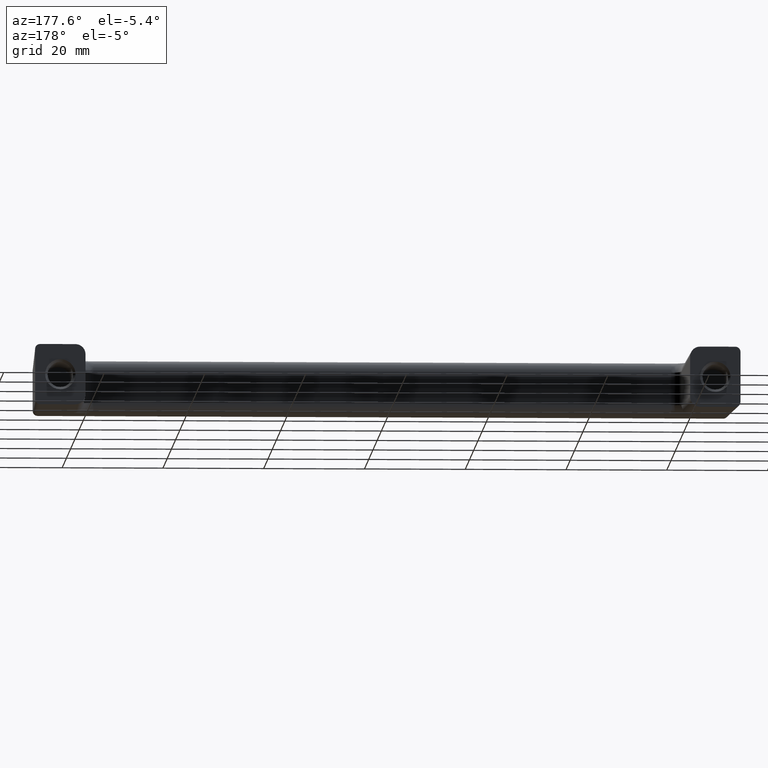
[diagram: clean part render]
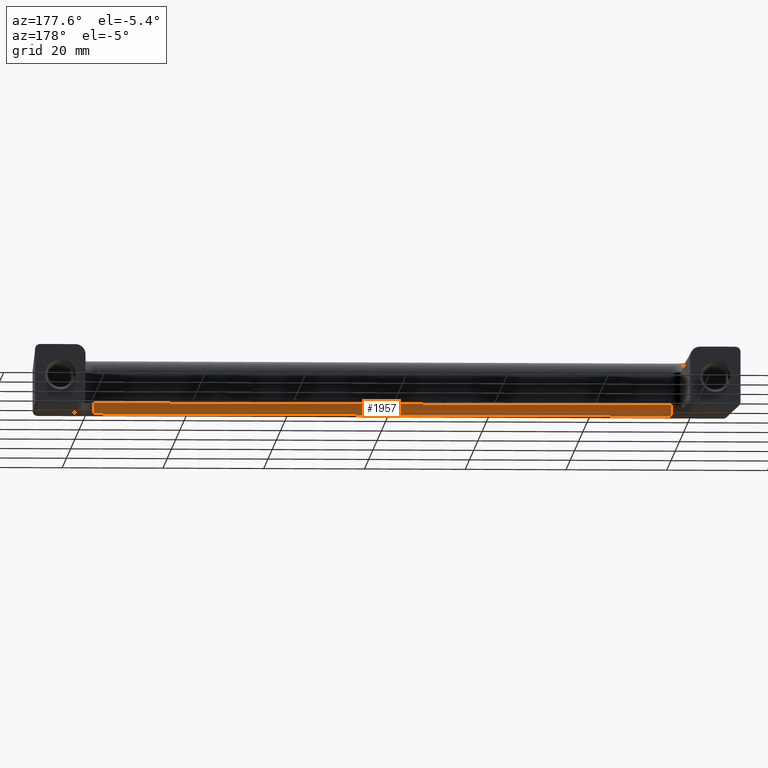
[diagram: same view with one face highlighted and labeled with its STEP entity id]
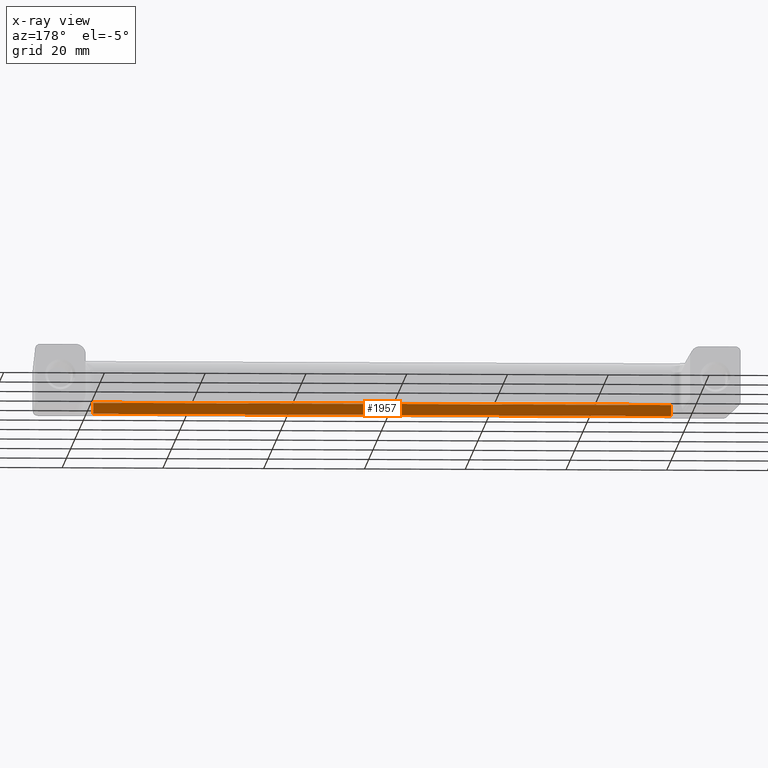
[diagram: x-ray of the same camera — body ghosted, the highlighted face saturated]
A machine part, auxiliary view. The second image highlights one B-rep face of the part: STEP entity #1957.
The next image is the same camera in x-ray: the body ghosted, the highlighted face saturated — about 0% of this face is hidden behind the body in this view.
In plain terms, the highlighted face is a freeform B-spline surface patch.
Its self-contained STEP definition (entity closure, byte-faithful):
#849=CARTESIAN_POINT('',(57.331442266291603,-15.448281288146971,6.808246652142731));
#850=VERTEX_POINT('',#849);
#856=CARTESIAN_POINT('',(-57.332582437466002,-15.448281288146971,6.808246652142731));
#857=VERTEX_POINT('',#856);
#858=CARTESIAN_POINT('',(57.331442266291603,-15.448281288146971,6.808246652142731));
#859=CARTESIAN_POINT('',(-57.332582437466002,-15.448281288146971,6.808246652142731));
#860=QUASI_UNIFORM_CURVE('',1,(#858,#859),.UNSPECIFIED.,.F.,.U.);
#861=EDGE_CURVE('',#850,#857,#860,.T.);
#1737=CARTESIAN_POINT('',(57.331442266291603,-17.503815422627628,4.809017810837291));
#1738=VERTEX_POINT('',#1737);
#1751=CARTESIAN_POINT('',(57.331442266291603,-17.503815422627628,4.809017810837291));
#1752=CARTESIAN_POINT('',(57.331442266291603,-17.304071006525859,4.803393607166441));
#1753=CARTESIAN_POINT('',(57.331442266291603,-16.902944732024022,4.852731292309013));
#1754=CARTESIAN_POINT('',(57.331442266291539,-16.319051489057230,5.114598398740401));
#1755=CARTESIAN_POINT('',(57.331442266291639,-15.884717414450980,5.516496605143509));
#1756=CARTESIAN_POINT('',(57.331442266291738,-15.541838452530129,6.092527395415690));
#1757=CARTESIAN_POINT('',(57.331442266291482,-15.447892394142441,6.525076427360666));
#1758=CARTESIAN_POINT('',(57.331442266291603,-15.448281288146971,6.808246652142731));
#1759=B_SPLINE_CURVE_WITH_KNOTS('',3,(#1751,#1752,#1753,#1754,#1755,#1756,#1757,#1758),.UNSPECIFIED.,.F.,.U.,(4,1,1,1,1,4),(0.000000361773880,0.599465207310481,1.198990161644574,1.898323578528536,2.347953223721050,3.197217016832097),.UNSPECIFIED.);
#1760=EDGE_CURVE('',#1738,#850,#1759,.T.);
#1921=CARTESIAN_POINT('',(60.198042883885542,-17.570378367216691,4.811977055298998));
#1922=CARTESIAN_POINT('',(-60.270848070499802,-17.570378367216691,4.811977055298998));
#1923=CARTESIAN_POINT('',(60.198042883885527,-15.290842437683089,4.672554665121554));
#1924=CARTESIAN_POINT('',(-60.270848070499810,-15.290842437683089,4.672554665121554));
#1925=CARTESIAN_POINT('',(60.198042883885549,-15.453351068774801,6.950561162420916));
#1926=CARTESIAN_POINT('',(-60.270848070499817,-15.453351068774801,6.950561162420916));
#1934=(BOUNDED_SURFACE()B_SPLINE_SURFACE(1,2,((#1921,#1923,#1925),(#1922,#1924,#1926)),.UNSPECIFIED.,.F.,.F.,.U.)B_SPLINE_SURFACE_WITH_KNOTS((2,2),(3,3),(0.0,120.468890954385300),(0.0,3.628135486560064),.UNSPECIFIED.)GEOMETRIC_REPRESENTATION_ITEM()RATIONAL_B_SPLINE_SURFACE(((1.0,0.657724756413543,0.996684679596068),(1.0,0.657724756413543,0.996684679596068)))REPRESENTATION_ITEM('')SURFACE());
#1935=CARTESIAN_POINT('',(-57.332582437466002,-17.503815422627628,4.809017810837291));
#1936=VERTEX_POINT('',#1935);
#1937=CARTESIAN_POINT('',(-57.332582437466002,-17.503815422627628,4.809017810837291));
#1938=CARTESIAN_POINT('',(-57.332582437465987,-17.304067272283181,4.803374859773398));
#1939=CARTESIAN_POINT('',(-57.332582437466051,-16.902950226313529,4.852754697414428));
#1940=CARTESIAN_POINT('',(-57.332582437465973,-16.319048030850659,5.114584309392770));
#1941=CARTESIAN_POINT('',(-57.332582437466030,-15.884718704413750,5.516501732830822));
#1942=CARTESIAN_POINT('',(-57.332582437466151,-15.541837812058031,6.092524842487915));
#1943=CARTESIAN_POINT('',(-57.332582437465867,-15.447892599649389,6.525077253197638));
#1944=CARTESIAN_POINT('',(-57.332582437466002,-15.448281288146971,6.808246652142731));
#1945=B_SPLINE_CURVE_WITH_KNOTS('',3,(#1937,#1938,#1939,#1940,#1941,#1942,#1943,#1944),.UNSPECIFIED.,.F.,.U.,(4,1,1,1,1,4),(0.000000361773880,0.599465207310481,1.198990161644574,1.898323578528536,2.347953223721050,3.197217016832097),.UNSPECIFIED.);
#1946=EDGE_CURVE('',#1936,#857,#1945,.T.);
#1947=ORIENTED_EDGE('',*,*,#1946,.T.);
#1948=ORIENTED_EDGE('',*,*,#861,.F.);
#1949=ORIENTED_EDGE('',*,*,#1760,.F.);
#1950=CARTESIAN_POINT('',(-57.332582437466002,-17.503815422627628,4.809017810837291));
#1951=CARTESIAN_POINT('',(57.331442266291603,-17.503815422627628,4.809017810837291));
#1952=QUASI_UNIFORM_CURVE('',1,(#1950,#1951),.UNSPECIFIED.,.F.,.U.);
#1953=EDGE_CURVE('',#1936,#1738,#1952,.T.);
#1954=ORIENTED_EDGE('',*,*,#1953,.F.);
#1955=EDGE_LOOP('',(#1947,#1948,#1949,#1954));
#1956=FACE_OUTER_BOUND('',#1955,.T.);
#1957=ADVANCED_FACE('',(#1956),#1934,.T.);